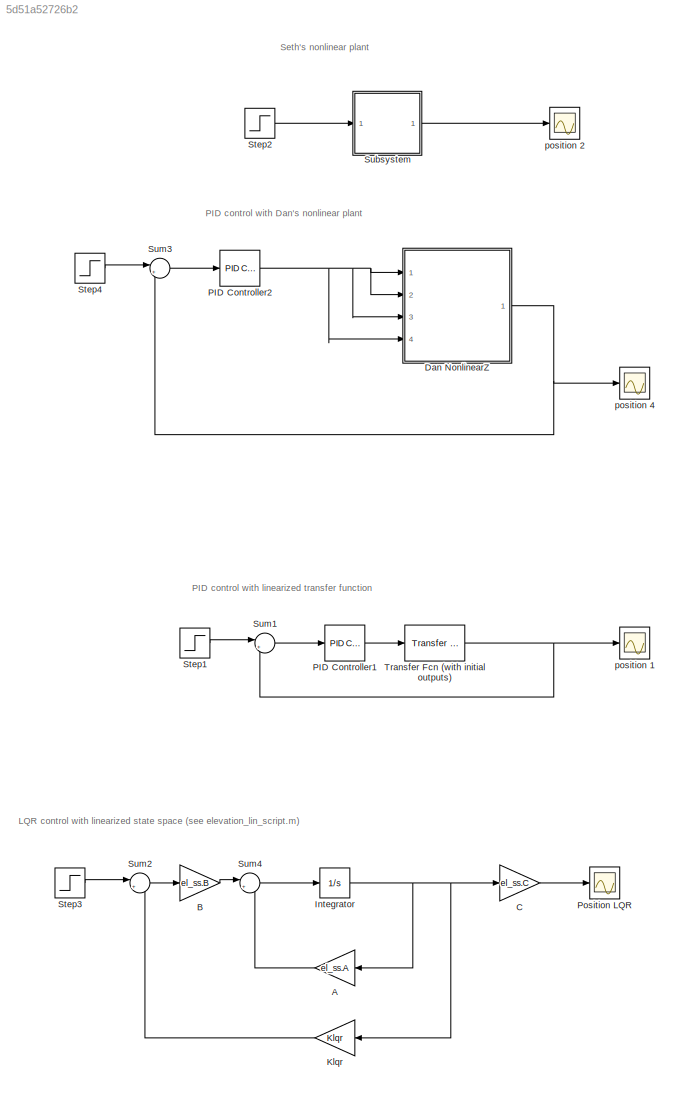
MODEL slx_5d51a52726b2
KIND model
CONFIG AbsTol = auto
CONFIG EnableMultiTasking = off
CONFIG FixedStep = auto
CONFIG MaxStep = auto
CONFIG MinStep = auto
CONFIG RelTol = 1e-3
CONFIG SampleTimeConstraint = Unconstrained
CONFIG Solver = VariableStepAuto
CONFIG SolverName = VariableStepAuto
CONFIG StartTime = 0.0
CONFIG StopTime = 10.0
BLOCK [Gain] A
  Commented = on
  Gain = el_ss.A
  Multiplication = Matrix(K*u)
  OutDataTypeStr = Inherit: Inherit via internal rule
  ParamDataTypeStr = Inherit: Inherit via internal rule
  SaturateOnIntegerOverflow = off
BLOCK [Gain] B
  Commented = on
  Gain = el_ss.B
  Multiplication = Matrix(K*u)
  OutDataTypeStr = Inherit: Inherit via internal rule
  ParamDataTypeStr = Inherit: Inherit via internal rule
  SaturateOnIntegerOverflow = off
BLOCK [Gain] C
  Commented = on
  Gain = el_ss.C
  Multiplication = Matrix(K*u)
  OutDataTypeStr = Inherit: Inherit via internal rule
  ParamDataTypeStr = Inherit: Inherit via internal rule
  SaturateOnIntegerOverflow = off
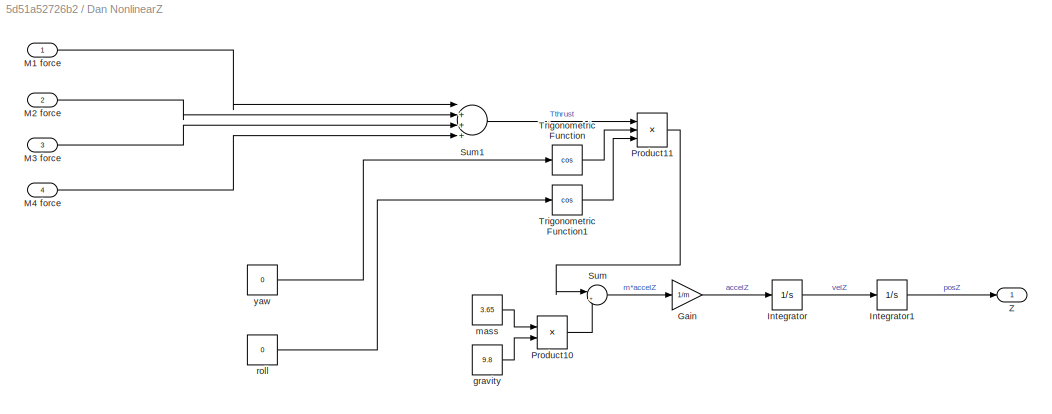
BLOCK [SubSystem] Dan NonlinearZ
  Commented = on
  Ports = [4, 1]
  RequestExecContextInheritance = off
  Variant = off
BLOCK [Gain] Dan NonlinearZ/Gain
  Gain = 1/m
  OutDataTypeStr = Inherit: Inherit via internal rule
  ParamDataTypeStr = Inherit: Inherit via internal rule
  SaturateOnIntegerOverflow = off
BLOCK [Integrator] Dan NonlinearZ/Integrator
  Ports = [1, 1]
BLOCK [Integrator] Dan NonlinearZ/Integrator1
  Ports = [1, 1]
BLOCK [Inport] Dan NonlinearZ/M1 force
  IconDisplay = Port number
BLOCK [Inport] Dan NonlinearZ/M2 force
  IconDisplay = Port number
  Port = 2
BLOCK [Inport] Dan NonlinearZ/M3 force
  IconDisplay = Port number
  Port = 3
BLOCK [Inport] Dan NonlinearZ/M4 force
  IconDisplay = Port number
  Port = 4
BLOCK [Product] Dan NonlinearZ/Product10
  InputSameDT = off
  OutDataTypeStr = Inherit: Inherit via internal rule
  Ports = [2, 1]
  RndMeth = Floor
  SaturateOnIntegerOverflow = off
BLOCK [Product] Dan NonlinearZ/Product11
  InputSameDT = off
  Inputs = 3
  OutDataTypeStr = Inherit: Inherit via internal rule
  Ports = [3, 1]
  RndMeth = Floor
  SaturateOnIntegerOverflow = off
BLOCK [Sum] Dan NonlinearZ/Sum
  IconShape = round
  InputSameDT = off
  Inputs = |+-
  OutDataTypeStr = Inherit: Inherit via internal rule
  Ports = [2, 1]
  SaturateOnIntegerOverflow = off
BLOCK [Sum] Dan NonlinearZ/Sum1
  InputSameDT = off
  Inputs = |++++
  OutDataTypeStr = Inherit: Inherit via internal rule
  Ports = [4, 1]
  SaturateOnIntegerOverflow = off
BLOCK [Trigonometry] Dan NonlinearZ/Trigonometric Function
  Operator = cos
  Ports = [1, 1]
BLOCK [Trigonometry] Dan NonlinearZ/Trigonometric Function1
  Operator = cos
  Ports = [1, 1]
BLOCK [Outport] Dan NonlinearZ/Z
  IconDisplay = Port number
BLOCK [Constant] Dan NonlinearZ/gravity
  Value = 9.8
BLOCK [Constant] Dan NonlinearZ/mass
  Value = 3.65
BLOCK [Constant] Dan NonlinearZ/roll
  Value = 0
BLOCK [Constant] Dan NonlinearZ/yaw
  Value = 0
BLOCK [Integrator] Integrator
  Commented = on
  Ports = [1, 1]
BLOCK [Gain] Klqr
  Commented = on
  Gain = Klqr
  Multiplication = Matrix(K*u)
  OutDataTypeStr = Inherit: Inherit via internal rule
  ParamDataTypeStr = Inherit: Inherit via internal rule
  SaturateOnIntegerOverflow = off
BLOCK [Reference] PID Controller1  REF=simulink/Continuous/PID Controller
  Ports = [1, 1]
  SourceBlock = simulink/Continuous/PID Controller
  SourceProductBaseCode = SL
  SourceProductName = Simulink
  SourceType = PID 1dof
BLOCK [Reference] PID Controller2  REF=simulink/Continuous/PID Controller
  Commented = on
  Ports = [1, 1]
  SourceBlock = simulink/Continuous/PID Controller
  SourceProductBaseCode = SL
  SourceProductName = Simulink
  SourceType = PID 1dof
BLOCK [Scope] Position LQR
  Commented = on
  NumInputPorts = 1
  Ports = [1]
  ScopeSpecificationString = Simulink.scopes.TimeScopeBlockCfg('CurrentConfiguration', extmgr.ConfigurationSet(extmgr.Configuration('Core','General UI',true),extmgr.Configuration('Core','Source UI',true),extmgr.Configuration('Sources','WiredSimulink',true,'DataLoggingVariableName','ScopeData1'),extmgr.Configuration('Visuals','Time Domain',true,'SerializedDisplays',{struct('MinYLimReal','-1.30396','MaxYLimReal','11.73563','YLa...<+1417ch>
BLOCK [Step] Step1
  After = 10
  SampleTime = 0
BLOCK [Step] Step2
  After = 10
  Commented = on
  SampleTime = 0
  Time = 2
BLOCK [Step] Step3
  After = 10
  Commented = on
  SampleTime = 0
  Time = 2
BLOCK [Step] Step4
  After = 10
  Commented = on
  SampleTime = 0
  Time = 2
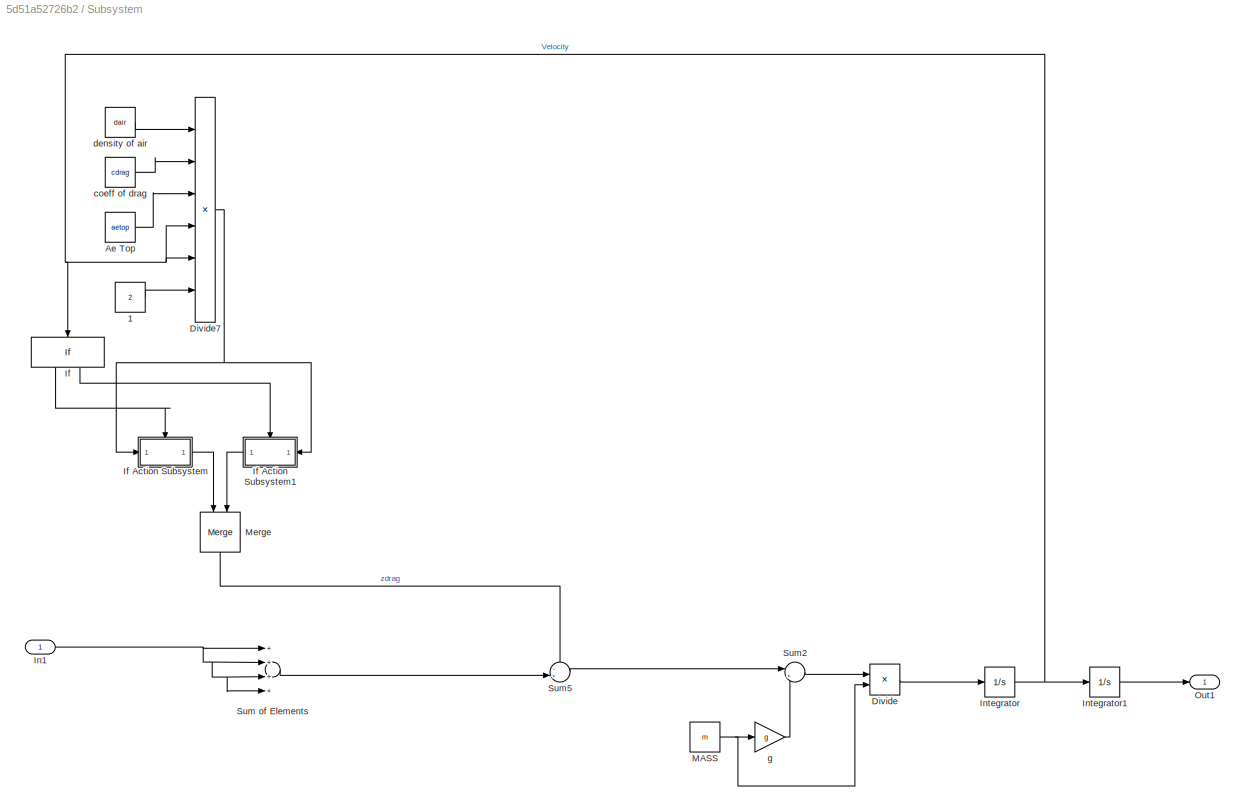
BLOCK [SubSystem] Subsystem
  Commented = on
  Ports = [1, 1]
  RequestExecContextInheritance = off
  Variant = off
BLOCK [Constant] Subsystem/1
  Value = 2
BLOCK [Constant] Subsystem/Ae Top
  Value = aetop
BLOCK [Product] Subsystem/Divide
  InputSameDT = off
  Inputs = */
  OutDataTypeStr = Inherit: Inherit via internal rule
  Ports = [2, 1]
  RndMeth = Floor
  SaturateOnIntegerOverflow = off
BLOCK [Product] Subsystem/Divide7
  InputSameDT = off
  Inputs = *****/
  OutDataTypeStr = Inherit: Inherit via internal rule
  Ports = [6, 1]
  RndMeth = Floor
  SaturateOnIntegerOverflow = off
BLOCK [If] Subsystem/If
  IfExpression = u1 < 0
  Ports = [1, 2]
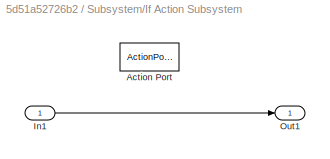
BLOCK [SubSystem] Subsystem/If Action Subsystem
  Ports = [1, 1, 0, 0, 0, 0, 0, 1]
  RequestExecContextInheritance = off
  TreatAsAtomicUnit = on
  Variant = off
BLOCK [ActionPort] Subsystem/If Action Subsystem/Action Port
  ActionType = then
BLOCK [Inport] Subsystem/If Action Subsystem/In1
  IconDisplay = Port number
BLOCK [Outport] Subsystem/If Action Subsystem/Out1
  IconDisplay = Port number
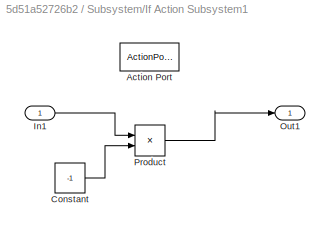
BLOCK [SubSystem] Subsystem/If Action Subsystem1
  Ports = [1, 1, 0, 0, 0, 0, 0, 1]
  RequestExecContextInheritance = off
  TreatAsAtomicUnit = on
  Variant = off
BLOCK [ActionPort] Subsystem/If Action Subsystem1/Action Port
  ActionType = else
BLOCK [Constant] Subsystem/If Action Subsystem1/Constant
  Value = -1
BLOCK [Inport] Subsystem/If Action Subsystem1/In1
  IconDisplay = Port number
BLOCK [Outport] Subsystem/If Action Subsystem1/Out1
  IconDisplay = Port number
BLOCK [Product] Subsystem/If Action Subsystem1/Product
  InputSameDT = off
  OutDataTypeStr = Inherit: Inherit via internal rule
  Ports = [2, 1]
  RndMeth = Floor
  SaturateOnIntegerOverflow = off
BLOCK [Inport] Subsystem/In1
  IconDisplay = Port number
BLOCK [Integrator] Subsystem/Integrator
  Ports = [1, 1]
BLOCK [Integrator] Subsystem/Integrator1
  Ports = [1, 1]
BLOCK [Constant] Subsystem/MASS
  Value = m
BLOCK [Merge] Subsystem/Merge
  Ports = [2, 1]
BLOCK [Outport] Subsystem/Out1
  IconDisplay = Port number
BLOCK [Sum] Subsystem/Sum of Elements
  InputSameDT = off
  Inputs = ++++
  OutDataTypeStr = Inherit: Inherit via internal rule
  Ports = [4, 1]
  SaturateOnIntegerOverflow = off
BLOCK [Sum] Subsystem/Sum2
  IconShape = round
  InputSameDT = off
  Inputs = |+-
  OutDataTypeStr = Inherit: Inherit via internal rule
  Ports = [2, 1]
  SaturateOnIntegerOverflow = off
BLOCK [Sum] Subsystem/Sum5
  IconShape = round
  InputSameDT = off
  Inputs = -+|
  OutDataTypeStr = Inherit: Inherit via internal rule
  Ports = [2, 1]
  SaturateOnIntegerOverflow = off
BLOCK [Constant] Subsystem/coeff of drag
  Value = cdrag
BLOCK [Constant] Subsystem/density of air
  Value = dair
BLOCK [Gain] Subsystem/g
  Gain = g
  OutDataTypeStr = Inherit: Inherit via internal rule
  ParamDataTypeStr = Inherit: Inherit via internal rule
  SaturateOnIntegerOverflow = off
BLOCK [Sum] Sum1
  IconShape = round
  InputSameDT = off
  Inputs = |+-
  OutDataTypeStr = Inherit: Inherit via internal rule
  Ports = [2, 1]
  SaturateOnIntegerOverflow = off
BLOCK [Sum] Sum2
  Commented = on
  IconShape = round
  InputSameDT = off
  Inputs = |+-
  OutDataTypeStr = Inherit: Inherit via internal rule
  Ports = [2, 1]
  SaturateOnIntegerOverflow = off
BLOCK [Sum] Sum3
  Commented = on
  IconShape = round
  InputSameDT = off
  Inputs = |+-
  OutDataTypeStr = Inherit: Inherit via internal rule
  Ports = [2, 1]
  SaturateOnIntegerOverflow = off
BLOCK [Sum] Sum4
  Commented = on
  IconShape = round
  InputSameDT = off
  Inputs = |++
  OutDataTypeStr = Inherit: Inherit via internal rule
  Ports = [2, 1]
  SaturateOnIntegerOverflow = off
BLOCK [Reference] Transfer Fcn (with initial outputs)  REF=simulink_extras/Additional
Linear/Transfer Fcn
(with initial outputs)
  Ports = [1, 1]
  SourceBlock = simulink_extras/Additional\nLinear/Transfer Fcn\n(with initial outputs)
  SourceProductBaseCode = SL
  SourceProductName = Simulink
  SourceType = Transfer Function with Initial Outputs
BLOCK [Scope] position 1
  NumInputPorts = 1
  Ports = [1]
  ScopeSpecificationString = Simulink.scopes.TimeScopeBlockCfg('CurrentConfiguration', extmgr.ConfigurationSet(extmgr.Configuration('Core','General UI',true),extmgr.Configuration('Core','Source UI',true),extmgr.Configuration('Sources','WiredSimulink',true,'DataLoggingVariableName','ScopeData1'),extmgr.Configuration('Visuals','Time Domain',true,'SerializedDisplays',{struct('MinYLimReal','-1.47503','MaxYLimReal','12.64684','YLa...<+1475ch>
BLOCK [Scope] position 2
  Commented = on
  NumInputPorts = 1
  Ports = [1]
  ScopeSpecificationString = Simulink.scopes.TimeScopeBlockCfg('CurrentConfiguration', extmgr.ConfigurationSet(extmgr.Configuration('Core','General UI',true),extmgr.Configuration('Core','Source UI',true),extmgr.Configuration('Sources','WiredSimulink',true,'DataLoggingVariableName','ScopeData1'),extmgr.Configuration('Visuals','Time Domain',true,'SerializedDisplays',{struct('MinYLimReal','-1.47503','MaxYLimReal','12.64684','YLa...<+1446ch>
BLOCK [Scope] position 4
  Commented = on
  NumInputPorts = 1
  Ports = [1]
  ScopeSpecificationString = Simulink.scopes.TimeScopeBlockCfg('CurrentConfiguration', extmgr.ConfigurationSet(extmgr.Configuration('Core','General UI',true),extmgr.Configuration('Core','Source UI',true),extmgr.Configuration('Sources','WiredSimulink',true,'DataLoggingVariableName','ScopeData2'),extmgr.Configuration('Visuals','Time Domain',true,'SerializedDisplays',{struct('MinYLimReal','-7.00234','MaxYLimReal','24.06077','YLa...<+1428ch>
ANNOTATION (root): LQR control with linearized state space (see elevation_lin_script.m)
ANNOTATION (root): PID control with Dan's nonlinear plant
ANNOTATION (root): PID control with linearized transfer function
ANNOTATION (root): Seth's nonlinear plant
LINE A:1 -> Sum4:2
LINE B:1 -> Sum4:1
LINE C:1 -> Position LQR:1
LINE Dan NonlinearZ/Gain:1 -> Dan NonlinearZ/Integrator:1
LINE Dan NonlinearZ/Integrator1:1 -> Dan NonlinearZ/Z:1
LINE Dan NonlinearZ/Integrator:1 -> Dan NonlinearZ/Integrator1:1
LINE Dan NonlinearZ/M1 force:1 -> Dan NonlinearZ/Sum1:1
LINE Dan NonlinearZ/M2 force:1 -> Dan NonlinearZ/Sum1:2
LINE Dan NonlinearZ/M3 force:1 -> Dan NonlinearZ/Sum1:3
LINE Dan NonlinearZ/M4 force:1 -> Dan NonlinearZ/Sum1:4
LINE Dan NonlinearZ/Product10:1 -> Dan NonlinearZ/Sum:2
LINE Dan NonlinearZ/Product11:1 -> Dan NonlinearZ/Sum:1
LINE Dan NonlinearZ/Sum1:1 -> Dan NonlinearZ/Product11:1
LINE Dan NonlinearZ/Sum:1 -> Dan NonlinearZ/Gain:1
LINE Dan NonlinearZ/Trigonometric Function1:1 -> Dan NonlinearZ/Product11:3
LINE Dan NonlinearZ/Trigonometric Function:1 -> Dan NonlinearZ/Product11:2
LINE Dan NonlinearZ/gravity:1 -> Dan NonlinearZ/Product10:2
LINE Dan NonlinearZ/mass:1 -> Dan NonlinearZ/Product10:1
LINE Dan NonlinearZ/roll:1 -> Dan NonlinearZ/Trigonometric Function1:1
LINE Dan NonlinearZ/yaw:1 -> Dan NonlinearZ/Trigonometric Function:1
NET Dan NonlinearZ:1 -> Sum3:2, position 4:1
NET Integrator:1 -> A:1, C:1, Klqr:1
LINE Klqr:1 -> Sum2:2
LINE PID Controller1:1 -> Transfer Fcn (with initial outputs):1
NET PID Controller2:1 -> Dan NonlinearZ:1, Dan NonlinearZ:2, Dan NonlinearZ:3, Dan NonlinearZ:4
LINE Step1:1 -> Sum1:1
LINE Step2:1 -> Subsystem:1
LINE Step3:1 -> Sum2:1
LINE Step4:1 -> Sum3:1
LINE Subsystem/1:1 -> Subsystem/Divide7:6
LINE Subsystem/Ae Top:1 -> Subsystem/Divide7:3
NET Subsystem/Divide7:1 -> Subsystem/If Action Subsystem1:1, Subsystem/If Action Subsystem:1
LINE Subsystem/Divide:1 -> Subsystem/Integrator:1
LINE Subsystem/If Action Subsystem/In1:1 -> Subsystem/If Action Subsystem/Out1:1
LINE Subsystem/If Action Subsystem1/Constant:1 -> Subsystem/If Action Subsystem1/Product:2
LINE Subsystem/If Action Subsystem1/In1:1 -> Subsystem/If Action Subsystem1/Product:1
LINE Subsystem/If Action Subsystem1/Product:1 -> Subsystem/If Action Subsystem1/Out1:1
LINE Subsystem/If Action Subsystem1:1 -> Subsystem/Merge:2
LINE Subsystem/If Action Subsystem:1 -> Subsystem/Merge:1
LINE Subsystem/If:1 -> Subsystem/If Action Subsystem:ifaction
LINE Subsystem/If:2 -> Subsystem/If Action Subsystem1:ifaction
NET Subsystem/In1:1 -> Subsystem/Sum of Elements:1, Subsystem/Sum of Elements:2, Subsystem/Sum of Elements:3, Subsystem/Sum of Elements:4
LINE Subsystem/Integrator1:1 -> Subsystem/Out1:1
NET Subsystem/Integrator:1 -> Subsystem/Divide7:4, Subsystem/Divide7:5, Subsystem/If:1, Subsystem/Integrator1:1
NET Subsystem/MASS:1 -> Subsystem/Divide:2, Subsystem/g:1
LINE Subsystem/Merge:1 -> Subsystem/Sum5:1
LINE Subsystem/Sum of Elements:1 -> Subsystem/Sum5:2
LINE Subsystem/Sum2:1 -> Subsystem/Divide:1
LINE Subsystem/Sum5:1 -> Subsystem/Sum2:1
LINE Subsystem/coeff of drag:1 -> Subsystem/Divide7:2
LINE Subsystem/density of air:1 -> Subsystem/Divide7:1
LINE Subsystem/g:1 -> Subsystem/Sum2:2
LINE Subsystem:1 -> position 2:1
LINE Sum1:1 -> PID Controller1:1
LINE Sum2:1 -> B:1
LINE Sum3:1 -> PID Controller2:1
LINE Sum4:1 -> Integrator:1
NET Transfer Fcn (with initial outputs):1 -> Sum1:2, position 1:1
note: NET lines group one-source signal fan-out (src -> all destinations, sorted); 1:1 wires keep LINE
